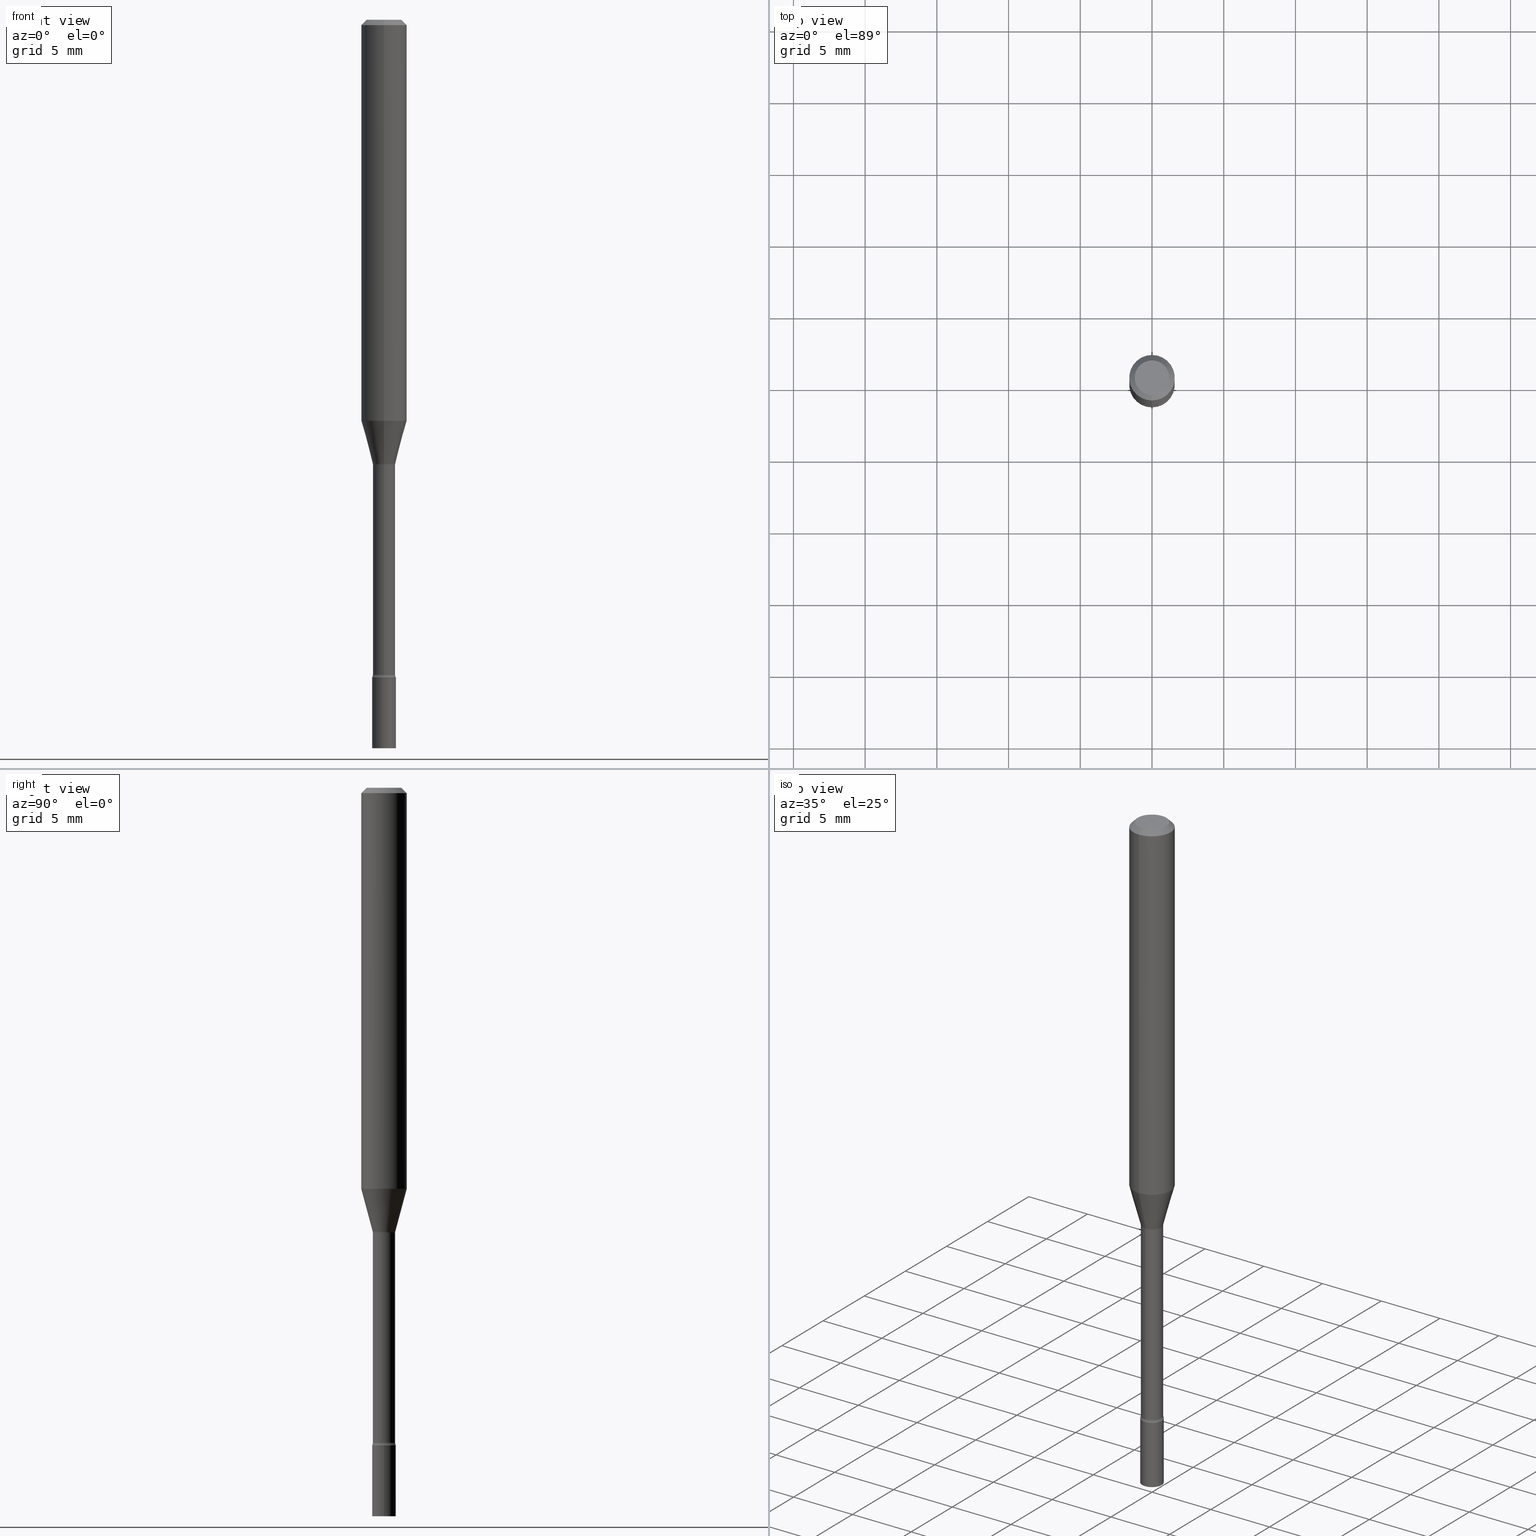
[diagram: canonical four-view strip — front | top / right | iso, engineering-drawing reading convention]
A machine part, canonical four-view strip (front | top / right | iso — engineering-drawing reading convention). The complete STEP part file that produces these views, byte-faithful:
ISO-10303-21;
HEADER;
FILE_DESCRIPTION (( 'STEP AP203' ),
    '1' );
FILE_NAME ('09866.STEP',
    '2024-03-09T02:30:56',
    ( '' ),
    ( '' ),
    'SwSTEP 2.0',
    'SolidWorks 2023',
    '' );
FILE_SCHEMA (( 'CONFIG_CONTROL_DESIGN' ));
ENDSEC;

DATA;
#1 = ORIENTED_EDGE ( 'NONE', *, *, #193, .T. ) ;
#2 = DATE_AND_TIME ( #67, #226 ) ;
#3 = DIRECTION ( 'NONE',  ( -2.445446564230640658E-29, 3.491513190587917155E-15, 1.000000000000000000 ) ) ;
#4 = DIRECTION ( 'NONE',  ( -6.982962677686265922E-15, -1.000000000000000000, 4.370956789862821150E-15 ) ) ;
#5 = CIRCLE ( 'NONE', #220, 0.06250000000000000000 ) ;
#6 = CIRCLE ( 'NONE', #363, 0.03055000000000000077 ) ;
#7 = CARTESIAN_POINT ( 'NONE',  ( 4.364351673553919652E-16, 0.06249999999999995143, -0.01500000000000024751 ) ) ;
#8 = DIRECTION ( 'NONE',  ( -6.982962677686265922E-15, -1.000000000000000000, 3.491513190587917155E-15 ) ) ;
#9 = ORIENTED_EDGE ( 'NONE', *, *, #57, .T. ) ;
#10 = EDGE_CURVE ( 'NONE', #101, #502, #59, .T. ) ;
#11 = DIRECTION ( 'NONE',  ( -2.445446564230640658E-29, 3.491513190587917155E-15, 1.000000000000000000 ) ) ;
#12 = CC_DESIGN_PERSON_AND_ORGANIZATION_ASSIGNMENT ( #311, #393, ( #234 ) ) ;
#13 = FACE_OUTER_BOUND ( 'NONE', #456, .T. ) ;
#14 = EDGE_LOOP ( 'NONE', ( #294, #263, #386, #18 ) ) ;
#15 = ORIENTED_EDGE ( 'NONE', *, *, #68, .T. ) ;
#16 = LINE ( 'NONE', #300, #19 ) ;
#17 = CYLINDRICAL_SURFACE ( 'NONE', #173, 0.03055000000000002505 ) ;
#18 = ORIENTED_EDGE ( 'NONE', *, *, #197, .T. ) ;
#19 = VECTOR ( 'NONE', #100, 39.37007874015748143 ) ;
#20 = EDGE_LOOP ( 'NONE', ( #451, #324, #383, #207 ) ) ;
#21 = EDGE_CURVE ( 'NONE', #202, #79, #341, .T. ) ;
#22 = CARTESIAN_POINT ( 'NONE',  ( -4.364351673553646016E-16, -0.06250000000000383027, -1.100760976698174298 ) ) ;
#23 = VERTEX_POINT ( 'NONE', #180 ) ;
#24 = PLANE ( 'NONE',  #427 ) ;
#25 = CARTESIAN_POINT ( 'NONE',  ( -2.133295098032718676E-16, -0.03055000000000632904, -1.797604224178627419 ) ) ;
#26 = AXIS2_PLACEMENT_3D ( 'NONE', #488, #81, #47 ) ;
#27 = AXIS2_PLACEMENT_3D ( 'NONE', #271, #399, #360 ) ;
#28 = DATE_TIME_ROLE ( 'classification_date' ) ;
#29 = DIRECTION ( 'NONE',  ( -6.982962677686265922E-15, -1.000000000000000000, 0.000000000000000000 ) ) ;
#30 = PERSON_AND_ORGANIZATION_ROLE ( 'classification_officer' ) ;
#31 = FACE_OUTER_BOUND ( 'NONE', #378, .T. ) ;
#32 = EDGE_CURVE ( 'NONE', #322, #202, #283, .T. ) ;
#33 = CARTESIAN_POINT ( 'NONE',  ( 0.000000000000000000, 0.000000000000000000, 0.000000000000000000 ) ) ;
#34 = CONICAL_SURFACE ( 'NONE', #236, 0.03106111260566394444, 0.2617993877991497964 ) ;
#35 = AXIS2_PLACEMENT_3D ( 'NONE', #194, #3, #276 ) ;
#36 = DIRECTION ( 'NONE',  ( -2.445446564230640658E-29, 3.491513190587917155E-15, 1.000000000000000000 ) ) ;
#37 = CARTESIAN_POINT ( 'NONE',  ( 4.414031048436306854E-29, -6.302181309011190411E-15, -1.804999999999999938 ) ) ;
#38 = AXIS2_PLACEMENT_3D ( 'NONE', #33, #354, #148 ) ;
#39 = DIRECTION ( 'NONE',  ( 1.000000000000000000, -7.105427357601001070E-15, 4.926315898613454836E-29 ) ) ;
#40 = CIRCLE ( 'NONE', #452, 0.03106111260566394444 ) ;
#41 = CIRCLE ( 'NONE', #398, 0.01500000000000001853 ) ;
#42 = DIRECTION ( 'NONE',  ( -6.982962677686265133E-15, -1.000000000000000000, 0.000000000000000000 ) ) ;
#43 = EDGE_LOOP ( 'NONE', ( #419, #85 ) ) ;
#44 = EDGE_CURVE ( 'NONE', #23, #246, #16, .T. ) ;
#45 = CARTESIAN_POINT ( 'NONE',  ( -2.133295098032855247E-16, -0.03055000000000426819, -1.221974787463810719 ) ) ;
#46 = EDGE_LOOP ( 'NONE', ( #487, #265 ) ) ;
#47 = DIRECTION ( 'NONE',  ( 1.000000000000000000, -6.982962677686258033E-15, 0.000000000000000000 ) ) ;
#48 = ORIENTED_EDGE ( 'NONE', *, *, #384, .T. ) ;
#49 = DIRECTION ( 'NONE',  ( 4.937700262164548042E-15, 0.7071067811865451302, -0.7071067811865499042 ) ) ;
#50 = CARTESIAN_POINT ( 'NONE',  ( 3.316907271900976096E-16, 0.04749999999999999362, -1.803030755379222344E-16 ) ) ;
#51 = ORIENTED_EDGE ( 'NONE', *, *, #44, .F. ) ;
#52 = VERTEX_POINT ( 'NONE', #25 ) ;
#53 =( NAMED_UNIT ( * ) SI_UNIT ( $, .STERADIAN. ) SOLID_ANGLE_UNIT ( ) );
#54 = VECTOR ( 'NONE', #49, 39.37007874015748143 ) ;
#55 = FACE_OUTER_BOUND ( 'NONE', #223, .T. ) ;
#56 = EDGE_LOOP ( 'NONE', ( #448, #264, #328, #95 ) ) ;
#57 = EDGE_CURVE ( 'NONE', #288, #97, #113, .T. ) ;
#58 = DIRECTION ( 'NONE',  ( -6.982962677686265133E-15, -1.000000000000000000, 4.471109645931690737E-15 ) ) ;
#59 = LINE ( 'NONE', #461, #353 ) ;
#60 =( NAMED_UNIT ( * ) PLANE_ANGLE_UNIT ( ) SI_UNIT ( $, .RADIAN. ) );
#61 = CARTESIAN_POINT ( 'NONE',  ( 0.03250000000000000111, -6.529070103636681305E-15, -1.804999999999999938 ) ) ;
#62 = EDGE_LOOP ( 'NONE', ( #313, #376, #110, #331 ) ) ;
#63 = PLANE ( 'NONE',  #338 ) ;
#64 = CONICAL_SURFACE ( 'NONE', #361, 0.06250000000000000000, 0.7853981633974483900 ) ;
#65 = TOROIDAL_SURFACE ( 'NONE', #301, 0.04555000000000000021, 0.01499999999999998904 ) ;
#66 = CIRCLE ( 'NONE', #317, 0.01500000000000001853 ) ;
#67 = CALENDAR_DATE ( 2024, 8, 3 ) ;
#68 = EDGE_CURVE ( 'NONE', #414, #246, #275, .T. ) ;
#69 = DIRECTION ( 'NONE',  ( -6.982962677686267499E-15, -1.000000000000000000, 0.000000000000000000 ) ) ;
#70 = DIRECTION ( 'NONE',  ( -2.445446564230640658E-29, 3.491513190587917155E-15, 1.000000000000000000 ) ) ;
#71 = MANIFOLD_SOLID_BREP ( 'Body-Move/Copy2[2]', #137 ) ;
#72 = DIRECTION ( 'NONE',  ( -6.982962677686266711E-15, -1.000000000000000000, 3.491513190587917549E-15 ) ) ;
#73 = AXIS2_PLACEMENT_3D ( 'NONE', #415, #258, #96 ) ;
#74 = LINE ( 'NONE', #106, #374 ) ;
#75 = CC_DESIGN_DATE_AND_TIME_ASSIGNMENT ( #429, #516, ( #234 ) ) ;
#76 = MANIFOLD_SOLID_BREP ( 'Body-Move/Copy2[1]', #498 ) ;
#77 = CARTESIAN_POINT ( 'NONE',  ( 2.239985974484158404E-16, 0.03054999999999378005, -1.797604224178627419 ) ) ;
#78 = FACE_OUTER_BOUND ( 'NONE', #464, .T. ) ;
#79 = VERTEX_POINT ( 'NONE', #145 ) ;
#80 = DIRECTION ( 'NONE',  ( -2.445446564230640658E-29, 3.491513190587917155E-15, 1.000000000000000000 ) ) ;
#81 = DIRECTION ( 'NONE',  ( -2.445468806185136597E-29, 3.491481338843145583E-15, 1.000000000000000000 ) ) ;
#82 = ORIENTED_EDGE ( 'NONE', *, *, #357, .T. ) ;
#83 = PERSON_AND_ORGANIZATION_ROLE ( 'design_owner' ) ;
#84 = DIRECTION ( 'NONE',  ( -2.445446564230640377E-29, 3.491513190587917155E-15, 1.000000000000000000 ) ) ;
#85 = ORIENTED_EDGE ( 'NONE', *, *, #357, .F. ) ;
#86 = EDGE_CURVE ( 'NONE', #373, #97, #430, .T. ) ;
#87 = VECTOR ( 'NONE', #375, 39.37007874015748143 ) ;
#88 = TOROIDAL_SURFACE ( 'NONE', #390, 0.04555000000000000021, 0.01499999999999998904 ) ;
#89 = CIRCLE ( 'NONE', #486, 0.03250000000000000111 ) ;
#90 = CARTESIAN_POINT ( 'NONE',  ( -2.133295098033156001E-16, -0.03055000000000002505, 1.066657279724609578E-16 ) ) ;
#91 = VERTEX_POINT ( 'NONE', #316 ) ;
#92 = DIMENSIONAL_EXPONENTS ( 1.000000000000000000, 0.000000000000000000, 0.000000000000000000, 0.000000000000000000, 0.000000000000000000, 0.000000000000000000, 0.000000000000000000 ) ;
#93 = CARTESIAN_POINT ( 'NONE',  ( 0.03250000000000000111, -7.209908964711093729E-15, -2.000000000000000000 ) ) ;
#94 = EDGE_CURVE ( 'NONE', #502, #79, #104, .T. ) ;
#95 = ORIENTED_EDGE ( 'NONE', *, *, #193, .F. ) ;
#96 = DIRECTION ( 'NONE',  ( -1.000000000000000000, 6.982962677686265922E-15, -4.876176775795935793E-29 ) ) ;
#97 = VERTEX_POINT ( 'NONE', #114 ) ;
#98 = APPROVAL ( #166, 'UNSPECIFIED' ) ;
#99 = DIRECTION ( 'NONE',  ( -6.982962677686265922E-15, -1.000000000000000000, 3.483106191921935554E-15 ) ) ;
#100 = DIRECTION ( 'NONE',  ( -2.445468806185136877E-29, 3.491481338843145188E-15, 1.000000000000000000 ) ) ;
#101 = VERTEX_POINT ( 'NONE', #268 ) ;
#102 = EDGE_CURVE ( 'NONE', #52, #91, #66, .T. ) ;
#103 = PERSON_AND_ORGANIZATION ( #112, #282 ) ;
#104 = LINE ( 'NONE', #395, #478 ) ;
#105 = LOCAL_TIME ( 21, 30, 56.00000000000000000, #144 ) ;
#106 = CARTESIAN_POINT ( 'NONE',  ( 2.207024792658396852E-16, 0.03106111260565969090, -1.218092501787273241 ) ) ;
#107 = SHAPE_DEFINITION_REPRESENTATION ( #412, #170 ) ;
#108 = DIRECTION ( 'NONE',  ( -2.445446564230640658E-29, 3.491513190587917155E-15, 1.000000000000000000 ) ) ;
#109 = EDGE_CURVE ( 'NONE', #254, #91, #89, .T. ) ;
#110 = ORIENTED_EDGE ( 'NONE', *, *, #68, .F. ) ;
#111 = FACE_OUTER_BOUND ( 'NONE', #56, .T. ) ;
#112 = PERSON ( 'UNSPECIFIED', 'UNSPECIFIED', 'UNSPECIFIED', ('UNSPECIFIED'), ('UNSPECIFIED'), ('UNSPECIFIED') ) ;
#113 = CIRCLE ( 'NONE', #310, 0.03055000000000000077 ) ;
#114 = CARTESIAN_POINT ( 'NONE',  ( 2.170708057747546898E-16, 0.03054999999999572988, -1.221974787463810941 ) ) ;
#115 = CARTESIAN_POINT ( 'NONE',  ( 2.988301224687461483E-29, -4.266502166966714459E-15, -1.221974787463810941 ) ) ;
#116 = ADVANCED_FACE ( 'NONE', ( #111 ), #157, .T. ) ;
#117 = DIRECTION ( 'NONE',  ( 7.105427357601001859E-15, 1.000000000000000000, 0.000000000000000000 ) ) ;
#118 = ORIENTED_EDGE ( 'NONE', *, *, #256, .F. ) ;
#119 = DIRECTION ( 'NONE',  ( -2.445468806185136597E-29, 3.491481338843145583E-15, 1.000000000000000000 ) ) ;
#120 = DIRECTION ( 'NONE',  ( -6.982962677686265922E-15, -1.000000000000000000, 3.491513190587917155E-15 ) ) ;
#121 = COORDINATED_UNIVERSAL_TIME_OFFSET ( 5, 0, .BEHIND. ) ;
#122 = EDGE_CURVE ( 'NONE', #257, #79, #326, .T. ) ;
#123 = FACE_OUTER_BOUND ( 'NONE', #337, .T. ) ;
#124 = ORIENTED_EDGE ( 'NONE', *, *, #480, .T. ) ;
#125 = DIRECTION ( 'NONE',  ( -6.982962677686265922E-15, -1.000000000000000000, 4.397537249142380957E-15 ) ) ;
#126 = CIRCLE ( 'NONE', #497, 0.03250000000000000111 ) ;
#127 = ORIENTED_EDGE ( 'NONE', *, *, #197, .F. ) ;
#128 = ADVANCED_FACE ( 'NONE', ( #229 ), #394, .T. ) ;
#129 = FACE_OUTER_BOUND ( 'NONE', #43, .T. ) ;
#130 = ORIENTED_EDGE ( 'NONE', *, *, #94, .F. ) ;
#131 = MECHANICAL_CONTEXT ( 'NONE', #178, 'mechanical' ) ;
#132 = CARTESIAN_POINT ( 'NONE',  ( 2.691852148505715417E-29, -3.843321469826115367E-15, -1.100760976698174520 ) ) ;
#133 = ORIENTED_EDGE ( 'NONE', *, *, #348, .F. ) ;
#134 = FACE_OUTER_BOUND ( 'NONE', #483, .T. ) ;
#135 = TOROIDAL_SURFACE ( 'NONE', #244, 0.04555000000000007654, 0.01500000000000002373 ) ;
#136 = DIRECTION ( 'NONE',  ( -6.982962677686266711E-15, -1.000000000000000000, 3.491513190587917549E-15 ) ) ;
#137 = CLOSED_SHELL ( 'NONE', ( #239, #405, #425, #219, #247, #339, #116, #165, #433, #458, #359, #280, #320, #366 ) ) ;
#138 = ORIENTED_EDGE ( 'NONE', *, *, #188, .T. ) ;
#139 = EDGE_CURVE ( 'NONE', #202, #322, #200, .T. ) ;
#140 = APPROVAL_STATUS ( 'not_yet_approved' ) ;
#141 = DIRECTION ( 'NONE',  ( -2.445446564230640658E-29, 3.491513190587917155E-15, 1.000000000000000000 ) ) ;
#142 = AXIS2_PLACEMENT_3D ( 'NONE', #432, #70, #29 ) ;
#143 = CC_DESIGN_PERSON_AND_ORGANIZATION_ASSIGNMENT ( #230, #30, ( #371 ) ) ;
#144 = COORDINATED_UNIVERSAL_TIME_OFFSET ( 5, 0, .BEHIND. ) ;
#145 = CARTESIAN_POINT ( 'NONE',  ( -4.364351673553912750E-16, -0.06250000000000005551, -0.01499999999999981209 ) ) ;
#146 = APPROVAL_ROLE ( '' ) ;
#147 = EDGE_CURVE ( 'NONE', #373, #254, #41, .T. ) ;
#148 = DIRECTION ( 'NONE',  ( 1.000000000000000000, -6.982962677686265922E-15, 4.876176775795935232E-29 ) ) ;
#149 = ORIENTED_EDGE ( 'NONE', *, *, #381, .F. ) ;
#150 = PERSON_AND_ORGANIZATION ( #112, #282 ) ;
#151 = DIRECTION ( 'NONE',  ( 1.000000000000000000, -6.982962677686265922E-15, 4.876176775795935232E-29 ) ) ;
#152 = DIRECTION ( 'NONE',  ( 1.839019923739597160E-15, 0.2588190451025245142, 0.9659258262890673130 ) ) ;
#153 = CC_DESIGN_APPROVAL ( #98, ( #234 ) ) ;
#154 = AXIS2_PLACEMENT_3D ( 'NONE', #211, #206, #442 ) ;
#155 = CIRCLE ( 'NONE', #508, 0.06250000000000000000 ) ;
#156 = CIRCLE ( 'NONE', #454, 0.01499999999999998557 ) ;
#157 = CONICAL_SURFACE ( 'NONE', #35, 0.03106111260566394444, 0.2617993877991497964 ) ;
#158 = DIRECTION ( 'NONE',  ( -6.982962677686265922E-15, -1.000000000000000000, 3.491513190587917155E-15 ) ) ;
#159 = FACE_OUTER_BOUND ( 'NONE', #291, .T. ) ;
#160 = ORIENTED_EDGE ( 'NONE', *, *, #500, .T. ) ;
#161 = DIRECTION ( 'NONE',  ( -6.982962677686265922E-15, -1.000000000000000000, 4.397537249142380957E-15 ) ) ;
#162 = LOCAL_TIME ( 21, 30, 56.00000000000000000, #121 ) ;
#163 = AXIS2_PLACEMENT_3D ( 'NONE', #195, #347, #151 ) ;
#164 = DIRECTION ( 'NONE',  ( -6.982962677686266711E-15, -1.000000000000000000, 0.000000000000000000 ) ) ;
#165 = ADVANCED_FACE ( 'NONE', ( #185 ), #520, .T. ) ;
#166 = APPROVAL_STATUS ( 'not_yet_approved' ) ;
#167 = CARTESIAN_POINT ( 'NONE',  ( 4.395945073864110714E-29, -6.276358860176236554E-15, -1.797604224178627419 ) ) ;
#168 = CC_DESIGN_PERSON_AND_ORGANIZATION_ASSIGNMENT ( #493, #83, ( #462 ) ) ;
#169 = CIRCLE ( 'NONE', #474, 0.06250000000000000000 ) ;
#170 = ADVANCED_BREP_SHAPE_REPRESENTATION ( '09866', ( #76, #71, #209 ), #298 ) ;
#171 = CARTESIAN_POINT ( 'NONE',  ( 0.03250000000000000111, -2.269462870248036484E-16, 1.584757452133678993E-30 ) ) ;
#172 = DIRECTION ( 'NONE',  ( -6.982962677686265133E-15, -1.000000000000000000, 4.471109645931690737E-15 ) ) ;
#173 = AXIS2_PLACEMENT_3D ( 'NONE', #176, #506, #262 ) ;
#174 = CARTESIAN_POINT ( 'NONE',  ( 4.440892098500625669E-16, 0.06250000000000000000, -2.182195744117448222E-16 ) ) ;
#175 = ORIENTED_EDGE ( 'NONE', *, *, #32, .F. ) ;
#176 = CARTESIAN_POINT ( 'NONE',  ( 0.000000000000000000, 0.000000000000000000, 0.000000000000000000 ) ) ;
#177 = CARTESIAN_POINT ( 'NONE',  ( -4.287811248607203282E-16, -0.06250000000000005551, -0.01499999999999981209 ) ) ;
#178 = APPLICATION_CONTEXT ( 'configuration controlled 3d designs of mechanical parts and assemblies' ) ;
#179 = DIRECTION ( 'NONE',  ( -6.982962677686265922E-15, -1.000000000000000000, 4.370956789862821150E-15 ) ) ;
#180 = CARTESIAN_POINT ( 'NONE',  ( -0.03250000000000000111, -6.411616858027052188E-15, -2.000000000000000000 ) ) ;
#181 = CARTESIAN_POINT ( 'NONE',  ( 2.978780123410792482E-29, -4.252986037346500323E-15, -1.218092501787273241 ) ) ;
#182 = ADVANCED_FACE ( 'NONE', ( #31 ), #63, .T. ) ;
#183 = AXIS2_PLACEMENT_3D ( 'NONE', #438, #484, #164 ) ;
#184 = CARTESIAN_POINT ( 'NONE',  ( 2.988274045579844042E-29, -4.266541088995761830E-15, -1.221974787463810941 ) ) ;
#185 = FACE_OUTER_BOUND ( 'NONE', #242, .T. ) ;
#186 = COORDINATED_UNIVERSAL_TIME_OFFSET ( 5, 0, .BEHIND. ) ;
#187 = DIRECTION ( 'NONE',  ( -6.982962677686265922E-15, -1.000000000000000000, 3.483106191921935554E-15 ) ) ;
#188 = EDGE_CURVE ( 'NONE', #212, #424, #74, .T. ) ;
#189 = SECURITY_CLASSIFICATION_LEVEL ( 'unclassified' ) ;
#190 = CARTESIAN_POINT ( 'NONE',  ( 2.170708057747107601E-16, 0.03055000000000002505, -1.066657279724609578E-16 ) ) ;
#191 = CIRCLE ( 'NONE', #210, 0.03055000000000005628 ) ;
#192 = VECTOR ( 'NONE', #479, 39.37007874015748143 ) ;
#193 = EDGE_CURVE ( 'NONE', #424, #502, #169, .T. ) ;
#194 = CARTESIAN_POINT ( 'NONE',  ( 2.978780123410792482E-29, -4.252986037346500323E-15, -1.218092501787273241 ) ) ;
#195 = CARTESIAN_POINT ( 'NONE',  ( 0.000000000000000000, 0.000000000000000000, 0.000000000000000000 ) ) ;
#196 = DIRECTION ( 'NONE',  ( -6.982962677686265922E-15, -1.000000000000000000, 3.491513190587917155E-15 ) ) ;
#197 = EDGE_CURVE ( 'NONE', #91, #254, #249, .T. ) ;
#198 = CC_DESIGN_APPROVAL ( #435, ( #380 ) ) ;
#199 = AXIS2_PLACEMENT_3D ( 'NONE', #447, #84, #8 ) ;
#200 = CIRCLE ( 'NONE', #269, 0.04749999999999999362 ) ;
#201 = DIRECTION ( 'NONE',  ( -2.445446564230640658E-29, 3.491513190587917155E-15, 1.000000000000000000 ) ) ;
#202 = VERTEX_POINT ( 'NONE', #434 ) ;
#203 = DIRECTION ( 'NONE',  ( -6.982962677686265133E-15, -1.000000000000000000, 0.000000000000000000 ) ) ;
#204 = ORIENTED_EDGE ( 'NONE', *, *, #296, .T. ) ;
#205 = ADVANCED_FACE ( 'NONE', ( #514 ), #233, .T. ) ;
#206 = DIRECTION ( 'NONE',  ( 2.445446564230640658E-29, -3.491513190587917155E-15, -1.000000000000000000 ) ) ;
#207 = ORIENTED_EDGE ( 'NONE', *, *, #102, .F. ) ;
#208 = PERSON_AND_ORGANIZATION ( #112, #282 ) ;
#209 = AXIS2_PLACEMENT_3D ( 'NONE', #218, #420, #379 ) ;
#210 = AXIS2_PLACEMENT_3D ( 'NONE', #167, #318, #42 ) ;
#211 = CARTESIAN_POINT ( 'NONE',  ( 3.668169846345967940E-31, -5.237269785881886382E-17, -0.01500000000000003067 ) ) ;
#212 = VERTEX_POINT ( 'NONE', #312 ) ;
#213 = DATE_AND_TIME ( #449, #162 ) ;
#214 = FACE_OUTER_BOUND ( 'NONE', #20, .T. ) ;
#215 = ORIENTED_EDGE ( 'NONE', *, *, #86, .F. ) ;
#216 = DIRECTION ( 'NONE',  ( -2.445446564230640658E-29, 3.491513190587917155E-15, 1.000000000000000000 ) ) ;
#217 = ORIENTED_EDGE ( 'NONE', *, *, #86, .T. ) ;
#218 = CARTESIAN_POINT ( 'NONE',  ( 0.000000000000000000, 0.000000000000000000, 0.000000000000000000 ) ) ;
#219 = ADVANCED_FACE ( 'NONE', ( #473 ), #368, .T. ) ;
#220 = AXIS2_PLACEMENT_3D ( 'NONE', #293, #457, #99 ) ;
#221 = AXIS2_PLACEMENT_3D ( 'NONE', #491, #372, #158 ) ;
#222 = DIRECTION ( 'NONE',  ( -2.445446564230640658E-29, 3.491513190587917155E-15, 1.000000000000000000 ) ) ;
#223 = EDGE_LOOP ( 'NONE', ( #297, #217, #505, #284 ) ) ;
#224 = ORIENTED_EDGE ( 'NONE', *, *, #256, .T. ) ;
#225 = ORIENTED_EDGE ( 'NONE', *, *, #109, .F. ) ;
#226 = LOCAL_TIME ( 21, 30, 56.00000000000000000, #466 ) ;
#227 = APPROVAL ( #519, 'UNSPECIFIED' ) ;
#228 = APPLICATION_PROTOCOL_DEFINITION ( 'international standard', 'config_control_design', 1994, #237 ) ;
#229 = FACE_OUTER_BOUND ( 'NONE', #62, .T. ) ;
#230 = PERSON_AND_ORGANIZATION ( #112, #282 ) ;
#231 = DIRECTION ( 'NONE',  ( -2.445446564230640658E-29, 3.491513190587917155E-15, 1.000000000000000000 ) ) ;
#232 = EDGE_CURVE ( 'NONE', #322, #257, #279, .T. ) ;
#233 = CYLINDRICAL_SURFACE ( 'NONE', #38, 0.03250000000000000111 ) ;
#234 = PRODUCT_DEFINITION ( 'UNKNOWN', '', #380, #431 ) ;
#235 = CARTESIAN_POINT ( 'NONE',  ( 0.000000000000000000, 0.000000000000000000, 0.000000000000000000 ) ) ;
#236 = AXIS2_PLACEMENT_3D ( 'NONE', #364, #11, #161 ) ;
#237 = APPLICATION_CONTEXT ( 'configuration controlled 3d designs of mechanical parts and assemblies' ) ;
#238 = DIRECTION ( 'NONE',  ( -2.445446564230640658E-29, 3.491513190587917155E-15, 1.000000000000000000 ) ) ;
#239 = ADVANCED_FACE ( 'NONE', ( #78 ), #65, .F. ) ;
#240 = CARTESIAN_POINT ( 'NONE',  ( 2.988301224687461483E-29, -4.266502166966714459E-15, -1.221974787463810941 ) ) ;
#241 = FACE_OUTER_BOUND ( 'NONE', #14, .T. ) ;
#242 = EDGE_LOOP ( 'NONE', ( #303, #1, #445, #426 ) ) ;
#243 = APPROVAL_PERSON_ORGANIZATION ( #150, #435, #468 ) ;
#244 = AXIS2_PLACEMENT_3D ( 'NONE', #407, #404, #196 ) ;
#245 = CYLINDRICAL_SURFACE ( 'NONE', #221, 0.06250000000000000000 ) ;
#246 = VERTEX_POINT ( 'NONE', #327 ) ;
#247 = ADVANCED_FACE ( 'NONE', ( #362 ), #245, .T. ) ;
#248 = ORIENTED_EDGE ( 'NONE', *, *, #500, .F. ) ;
#249 = CIRCLE ( 'NONE', #142, 0.03250000000000000111 ) ;
#250 = DIRECTION ( 'NONE',  ( -6.982962677686265922E-15, -1.000000000000000000, 3.491513190587917155E-15 ) ) ;
#251 = EDGE_LOOP ( 'NONE', ( #215, #204, #411, #492 ) ) ;
#252 = CIRCLE ( 'NONE', #26, 0.03250000000000000111 ) ;
#253 =( LENGTH_UNIT ( ) NAMED_UNIT ( * ) SI_UNIT ( $, .METRE. ) );
#254 = VERTEX_POINT ( 'NONE', #369 ) ;
#255 = FACE_OUTER_BOUND ( 'NONE', #46, .T. ) ;
#256 = EDGE_CURVE ( 'NONE', #246, #414, #499, .T. ) ;
#257 = VERTEX_POINT ( 'NONE', #444 ) ;
#258 = DIRECTION ( 'NONE',  ( 2.438088387897960049E-29, -3.491481338843145188E-15, -1.000000000000000000 ) ) ;
#259 = EDGE_LOOP ( 'NONE', ( #417, #124, #365, #130 ) ) ;
#260 = APPROVAL_PERSON_ORGANIZATION ( #208, #98, #329 ) ;
#261 = AXIS2_PLACEMENT_3D ( 'NONE', #409, #277, #203 ) ;
#262 = DIRECTION ( 'NONE',  ( -6.982962677686265922E-15, -1.000000000000000000, 3.491513190587917155E-15 ) ) ;
#263 = ORIENTED_EDGE ( 'NONE', *, *, #306, .F. ) ;
#264 = ORIENTED_EDGE ( 'NONE', *, *, #416, .T. ) ;
#265 = ORIENTED_EDGE ( 'NONE', *, *, #139, .T. ) ;
#266 = CIRCLE ( 'NONE', #334, 0.03106111260566394444 ) ;
#267 = PERSON_AND_ORGANIZATION_ROLE ( 'design_supplier' ) ;
#268 = CARTESIAN_POINT ( 'NONE',  ( -2.168985900527319414E-16, -0.03106111260566819451, -1.218092501787273019 ) ) ;
#269 = AXIS2_PLACEMENT_3D ( 'NONE', #315, #108, #72 ) ;
#270 = CARTESIAN_POINT ( 'NONE',  ( 2.691852148505715417E-29, -3.843321469826115367E-15, -1.100760976698174520 ) ) ;
#271 = CARTESIAN_POINT ( 'NONE',  ( 4.414071195164171423E-29, -6.302123816611877952E-15, -1.804999999999999938 ) ) ;
#272 = ORIENTED_EDGE ( 'NONE', *, *, #348, .T. ) ;
#273 = CARTESIAN_POINT ( 'NONE',  ( 3.236522161387701082E-16, 0.04554999999999380378, -1.797604224178627641 ) ) ;
#274 = APPROVAL_PERSON_ORGANIZATION ( #352, #227, #146 ) ;
#275 = CIRCLE ( 'NONE', #27, 0.03250000000000000111 ) ;
#276 = DIRECTION ( 'NONE',  ( -6.982962677686265922E-15, -1.000000000000000000, 4.397537249142380957E-15 ) ) ;
#277 = DIRECTION ( 'NONE',  ( -2.445446564230640658E-29, 3.491513190587917155E-15, 1.000000000000000000 ) ) ;
#278 = UNCERTAINTY_MEASURE_WITH_UNIT (LENGTH_MEASURE( 1.000000000000000082E-05 ), #512, 'distance_accuracy_value', 'NONE');
#279 = LINE ( 'NONE', #7, #54 ) ;
#280 = ADVANCED_FACE ( 'NONE', ( #241 ), #135, .F. ) ;
#281 = EDGE_LOOP ( 'NONE', ( #511, #333, #489, #440 ) ) ;
#282 = ORGANIZATION ( 'UNSPECIFIED', 'UNSPECIFIED', '' ) ;
#283 = CIRCLE ( 'NONE', #509, 0.04749999999999999362 ) ;
#284 = ORIENTED_EDGE ( 'NONE', *, *, #472, .F. ) ;
#285 = DIRECTION ( 'NONE',  ( 1.000000000000000000, -6.982962677686258033E-15, 0.000000000000000000 ) ) ;
#286 = ORIENTED_EDGE ( 'NONE', *, *, #232, .T. ) ;
#287 = DIRECTION ( 'NONE',  ( -2.445446564230640658E-29, 3.491513190587917155E-15, 1.000000000000000000 ) ) ;
#288 = VERTEX_POINT ( 'NONE', #45 ) ;
#289 = CC_DESIGN_SECURITY_CLASSIFICATION ( #371, ( #380 ) ) ;
#290 = VECTOR ( 'NONE', #422, 39.37007874015748143 ) ;
#291 = EDGE_LOOP ( 'NONE', ( #149, #248, #272, #9 ) ) ;
#292 = PRODUCT_RELATED_PRODUCT_CATEGORY ( 'detail', '', ( #462 ) ) ;
#293 = CARTESIAN_POINT ( 'NONE',  ( 3.668169846345967940E-31, -5.237269785881886382E-17, -0.01500000000000003067 ) ) ;
#294 = ORIENTED_EDGE ( 'NONE', *, *, #147, .F. ) ;
#295 = DIRECTION ( 'NONE',  ( -2.445446564230640658E-29, 3.491513190587917155E-15, 1.000000000000000000 ) ) ;
#296 = EDGE_CURVE ( 'NONE', #373, #52, #191, .T. ) ;
#297 = ORIENTED_EDGE ( 'NONE', *, *, #306, .T. ) ;
#298 =( GEOMETRIC_REPRESENTATION_CONTEXT ( 3 ) GLOBAL_UNCERTAINTY_ASSIGNED_CONTEXT ( ( #278 ) ) GLOBAL_UNIT_ASSIGNED_CONTEXT ( ( #512, #60, #53 ) ) REPRESENTATION_CONTEXT ( 'NONE', 'WORKASPACE' ) );
#299 = LINE ( 'NONE', #171, #87 ) ;
#300 = CARTESIAN_POINT ( 'NONE',  ( -0.03250000000000000111, 2.309263891220325683E-16, -1.598653904332844407E-30 ) ) ;
#301 = AXIS2_PLACEMENT_3D ( 'NONE', #115, #80, #120 ) ;
#302 = CC_DESIGN_DATE_AND_TIME_ASSIGNMENT ( #349, #28, ( #371 ) ) ;
#303 = ORIENTED_EDGE ( 'NONE', *, *, #480, .F. ) ;
#304 = COORDINATED_UNIVERSAL_TIME_OFFSET ( 5, 0, .BEHIND. ) ;
#305 = DIRECTION ( 'NONE',  ( 7.105427357601001859E-15, 1.000000000000000000, 0.000000000000000000 ) ) ;
#306 = EDGE_CURVE ( 'NONE', #52, #373, #518, .T. ) ;
#307 = LOCAL_TIME ( 21, 30, 56.00000000000000000, #186 ) ;
#308 = CALENDAR_DATE ( 2024, 8, 3 ) ;
#309 = DIRECTION ( 'NONE',  ( 1.000000000000000000, -6.982962677686265922E-15, 4.876176775795935793E-29 ) ) ;
#310 = AXIS2_PLACEMENT_3D ( 'NONE', #184, #345, #172 ) ;
#311 = PERSON_AND_ORGANIZATION ( #112, #282 ) ;
#312 = CARTESIAN_POINT ( 'NONE',  ( 3.323958445579646476E-16, 0.03106111260565969090, -1.218092501787273241 ) ) ;
#313 = ORIENTED_EDGE ( 'NONE', *, *, #396, .T. ) ;
#314 = APPROVAL_DATE_TIME ( #2, #435 ) ;
#315 = CARTESIAN_POINT ( 'NONE',  ( 7.070372427938679319E-46, -1.009480188837556629E-31, -2.891239796999236725E-17 ) ) ;
#316 = CARTESIAN_POINT ( 'NONE',  ( -2.269462870247595215E-16, -0.03250000000000631550, -1.804999999999999938 ) ) ;
#317 = AXIS2_PLACEMENT_3D ( 'NONE', #467, #358, #69 ) ;
#318 = DIRECTION ( 'NONE',  ( -2.445446564230640658E-29, 3.491513190587917155E-15, 1.000000000000000000 ) ) ;
#319 = AXIS2_PLACEMENT_3D ( 'NONE', #235, #477, #437 ) ;
#320 = ADVANCED_FACE ( 'NONE', ( #367 ), #439, .T. ) ;
#321 = DIRECTION ( 'NONE',  ( -6.982962677686265922E-15, -1.000000000000000000, 3.491513190587917155E-15 ) ) ;
#322 = VERTEX_POINT ( 'NONE', #323 ) ;
#323 = CARTESIAN_POINT ( 'NONE',  ( 3.840629472727447874E-16, 0.04749999999999999362, -1.947592745229184365E-16 ) ) ;
#324 = ORIENTED_EDGE ( 'NONE', *, *, #147, .T. ) ;
#325 = VECTOR ( 'NONE', #216, 39.37007874015748143 ) ;
#326 = CIRCLE ( 'NONE', #428, 0.06250000000000000000 ) ;
#327 = CARTESIAN_POINT ( 'NONE',  ( -0.03250000000000000111, -6.411616858027052188E-15, -1.804999999999999938 ) ) ;
#328 = ORIENTED_EDGE ( 'NONE', *, *, #10, .T. ) ;
#329 = APPROVAL_ROLE ( '' ) ;
#330 = PLANE ( 'NONE',  #199 ) ;
#331 = ORIENTED_EDGE ( 'NONE', *, *, #446, .F. ) ;
#332 = DIRECTION ( 'NONE',  ( 1.000000000000000000, -6.982962677686258033E-15, 0.000000000000000000 ) ) ;
#333 = ORIENTED_EDGE ( 'NONE', *, *, #21, .T. ) ;
#334 = AXIS2_PLACEMENT_3D ( 'NONE', #418, #222, #382 ) ;
#335 = AXIS2_PLACEMENT_3D ( 'NONE', #481, #119, #285 ) ;
#336 = DIRECTION ( 'NONE',  ( -2.445446564230640658E-29, 3.491513190587917155E-15, 1.000000000000000000 ) ) ;
#337 = EDGE_LOOP ( 'NONE', ( #160, #138, #507, #388 ) ) ;
#338 = AXIS2_PLACEMENT_3D ( 'NONE', #392, #350, #309 ) ;
#339 = ADVANCED_FACE ( 'NONE', ( #123 ), #34, .T. ) ;
#340 = CARTESIAN_POINT ( 'NONE',  ( 4.395985056095466653E-29, -6.276301603345288080E-15, -1.797604224178627419 ) ) ;
#341 = LINE ( 'NONE', #177, #290 ) ;
#342 = DIRECTION ( 'NONE',  ( -2.445446564230640658E-29, 3.491513190587917155E-15, 1.000000000000000000 ) ) ;
#343 = CIRCLE ( 'NONE', #183, 0.01499999999999998557 ) ;
#344 = PLANE ( 'NONE',  #73 ) ;
#345 = DIRECTION ( 'NONE',  ( -2.445446564230640658E-29, 3.491513190587917155E-15, 1.000000000000000000 ) ) ;
#346 = DATE_AND_TIME ( #308, #105 ) ;
#347 = DIRECTION ( 'NONE',  ( -2.445468806185136597E-29, 3.491481338843145583E-15, 1.000000000000000000 ) ) ;
#348 = EDGE_CURVE ( 'NONE', #101, #288, #343, .T. ) ;
#349 = DATE_AND_TIME ( #391, #307 ) ;
#350 = DIRECTION ( 'NONE',  ( -2.438088387897960049E-29, 3.491481338843145188E-15, 1.000000000000000000 ) ) ;
#351 = LOCAL_TIME ( 21, 30, 56.00000000000000000, #304 ) ;
#352 = PERSON_AND_ORGANIZATION ( #112, #282 ) ;
#353 = VECTOR ( 'NONE', #459, 39.37007874015748143 ) ;
#354 = DIRECTION ( 'NONE',  ( -2.445468806185136597E-29, 3.491481338843145583E-15, 1.000000000000000000 ) ) ;
#355 = EDGE_LOOP ( 'NONE', ( #51, #82, #406, #118 ) ) ;
#356 = PERSON_AND_ORGANIZATION ( #112, #282 ) ;
#357 = EDGE_CURVE ( 'NONE', #23, #496, #252, .T. ) ;
#358 = DIRECTION ( 'NONE',  ( -1.000000000000000000, 6.982962677686265922E-15, -4.883557194083112340E-29 ) ) ;
#359 = ADVANCED_FACE ( 'NONE', ( #13 ), #330, .F. ) ;
#360 = DIRECTION ( 'NONE',  ( 1.000000000000000000, -6.982962677686258033E-15, 0.000000000000000000 ) ) ;
#361 = AXIS2_PLACEMENT_3D ( 'NONE', #494, #460, #504 ) ;
#362 = FACE_OUTER_BOUND ( 'NONE', #259, .T. ) ;
#363 = AXIS2_PLACEMENT_3D ( 'NONE', #510, #336, #58 ) ;
#364 = CARTESIAN_POINT ( 'NONE',  ( 2.978780123410792482E-29, -4.252986037346500323E-15, -1.218092501787273241 ) ) ;
#365 = ORIENTED_EDGE ( 'NONE', *, *, #485, .F. ) ;
#366 = ADVANCED_FACE ( 'NONE', ( #159 ), #88, .F. ) ;
#367 = FACE_OUTER_BOUND ( 'NONE', #251, .T. ) ;
#368 = CONICAL_SURFACE ( 'NONE', #154, 0.06250000000000000000, 0.7853981633974483900 ) ;
#369 = CARTESIAN_POINT ( 'NONE',  ( 2.309263891220767445E-16, 0.03249999999999371447, -1.804999999999999938 ) ) ;
#370 = ORIENTED_EDGE ( 'NONE', *, *, #122, .T. ) ;
#371 = SECURITY_CLASSIFICATION ( '', '', #189 ) ;
#372 = DIRECTION ( 'NONE',  ( -2.445446564230640658E-29, 3.491513190587917155E-15, 1.000000000000000000 ) ) ;
#373 = VERTEX_POINT ( 'NONE', #77 ) ;
#374 = VECTOR ( 'NONE', #152, 39.37007874015748143 ) ;
#375 = DIRECTION ( 'NONE',  ( -2.445468806185136877E-29, 3.491481338843145188E-15, 1.000000000000000000 ) ) ;
#376 = ORIENTED_EDGE ( 'NONE', *, *, #44, .T. ) ;
#377 = LINE ( 'NONE', #174, #436 ) ;
#378 = EDGE_LOOP ( 'NONE', ( #15, #224 ) ) ;
#379 = DIRECTION ( 'NONE',  ( 1.000000000000000000, 0.000000000000000000, 0.000000000000000000 ) ) ;
#380 = PRODUCT_DEFINITION_FORMATION_WITH_SPECIFIED_SOURCE ( 'ANY', '', #462, .NOT_KNOWN. ) ;
#381 = EDGE_CURVE ( 'NONE', #212, #97, #156, .T. ) ;
#382 = DIRECTION ( 'NONE',  ( -6.982962677686265922E-15, -1.000000000000000000, 4.397537249142380957E-15 ) ) ;
#383 = ORIENTED_EDGE ( 'NONE', *, *, #109, .T. ) ;
#384 = EDGE_CURVE ( 'NONE', #97, #288, #6, .T. ) ;
#385 = DIRECTION ( 'NONE',  ( 2.445446564230640377E-29, -3.491513190587917155E-15, -1.000000000000000000 ) ) ;
#386 = ORIENTED_EDGE ( 'NONE', *, *, #102, .T. ) ;
#387 = DIRECTION ( 'NONE',  ( -6.982962677686265922E-15, -1.000000000000000000, 3.491513190587917155E-15 ) ) ;
#388 = ORIENTED_EDGE ( 'NONE', *, *, #10, .F. ) ;
#389 = AXIS2_PLACEMENT_3D ( 'NONE', #340, #295, #387 ) ;
#390 = AXIS2_PLACEMENT_3D ( 'NONE', #240, #402, #321 ) ;
#391 = CALENDAR_DATE ( 2024, 8, 3 ) ;
#392 = CARTESIAN_POINT ( 'NONE',  ( 4.414071195164171423E-29, -6.302123816611877952E-15, -1.804999999999999938 ) ) ;
#393 = PERSON_AND_ORGANIZATION_ROLE ( 'creator' ) ;
#394 = CYLINDRICAL_SURFACE ( 'NONE', #163, 0.03250000000000000111 ) ;
#395 = CARTESIAN_POINT ( 'NONE',  ( -4.364351673553916201E-16, -0.06250000000000000000, 2.182195744117448222E-16 ) ) ;
#396 = EDGE_CURVE ( 'NONE', #496, #23, #126, .T. ) ;
#397 = AXIS2_PLACEMENT_3D ( 'NONE', #410, #201, #250 ) ;
#398 = AXIS2_PLACEMENT_3D ( 'NONE', #273, #470, #305 ) ;
#399 = DIRECTION ( 'NONE',  ( -2.445468806185136597E-29, 3.491481338843145583E-15, 1.000000000000000000 ) ) ;
#400 = CC_DESIGN_PERSON_AND_ORGANIZATION_ASSIGNMENT ( #356, #476, ( #380 ) ) ;
#401 = DIRECTION ( 'NONE',  ( -6.982962677686265922E-15, -1.000000000000000000, 0.000000000000000000 ) ) ;
#402 = DIRECTION ( 'NONE',  ( -2.445446564230640658E-29, 3.491513190587917155E-15, 1.000000000000000000 ) ) ;
#403 = CC_DESIGN_APPROVAL ( #227, ( #371 ) ) ;
#404 = DIRECTION ( 'NONE',  ( -2.445446564230640658E-29, 3.491513190587917155E-15, 1.000000000000000000 ) ) ;
#405 = ADVANCED_FACE ( 'NONE', ( #55 ), #17, .T. ) ;
#406 = ORIENTED_EDGE ( 'NONE', *, *, #446, .T. ) ;
#407 = CARTESIAN_POINT ( 'NONE',  ( 4.395985056095466653E-29, -6.276301603345288080E-15, -1.797604224178627419 ) ) ;
#408 = ORIENTED_EDGE ( 'NONE', *, *, #21, .F. ) ;
#409 = CARTESIAN_POINT ( 'NONE',  ( 4.395945073864110714E-29, -6.276358860176236554E-15, -1.797604224178627419 ) ) ;
#410 = CARTESIAN_POINT ( 'NONE',  ( 0.000000000000000000, 0.000000000000000000, 0.000000000000000000 ) ) ;
#411 = ORIENTED_EDGE ( 'NONE', *, *, #472, .T. ) ;
#412 = PRODUCT_DEFINITION_SHAPE ( 'NONE', 'NONE',  #234 ) ;
#413 = CARTESIAN_POINT ( 'NONE',  ( 4.890937612370273194E-29, -6.982962677686291165E-15, -2.000000000000000000 ) ) ;
#414 = VERTEX_POINT ( 'NONE', #61 ) ;
#415 = CARTESIAN_POINT ( 'NONE',  ( 2.269462870248525577E-16, 0.03249999999999301364, -2.000000000000000000 ) ) ;
#416 = EDGE_CURVE ( 'NONE', #212, #101, #40, .T. ) ;
#417 = ORIENTED_EDGE ( 'NONE', *, *, #515, .T. ) ;
#418 = CARTESIAN_POINT ( 'NONE',  ( 2.978780123410792482E-29, -4.252986037346500323E-15, -1.218092501787273241 ) ) ;
#419 = ORIENTED_EDGE ( 'NONE', *, *, #396, .F. ) ;
#420 = DIRECTION ( 'NONE',  ( 0.000000000000000000, 0.000000000000000000, 1.000000000000000000 ) ) ;
#421 = LINE ( 'NONE', #90, #325 ) ;
#422 = DIRECTION ( 'NONE',  ( -4.851104656540964275E-15, -0.7071067811865500152, -0.7071067811865450192 ) ) ;
#423 = DIRECTION ( 'NONE',  ( -2.445468806185136597E-29, 3.491481338843145583E-15, 1.000000000000000000 ) ) ;
#424 = VERTEX_POINT ( 'NONE', #501 ) ;
#425 = ADVANCED_FACE ( 'NONE', ( #214 ), #495, .F. ) ;
#426 = ORIENTED_EDGE ( 'NONE', *, *, #122, .F. ) ;
#427 = AXIS2_PLACEMENT_3D ( 'NONE', #50, #385, #455 ) ;
#428 = AXIS2_PLACEMENT_3D ( 'NONE', #517, #231, #187 ) ;
#429 = DATE_AND_TIME ( #513, #351 ) ;
#430 = LINE ( 'NONE', #190, #192 ) ;
#431 = DESIGN_CONTEXT ( 'detailed design', #237, 'design' ) ;
#432 = CARTESIAN_POINT ( 'NONE',  ( 4.414031048436306854E-29, -6.302181309011190411E-15, -1.804999999999999938 ) ) ;
#433 = ADVANCED_FACE ( 'NONE', ( #134 ), #64, .T. ) ;
#434 = CARTESIAN_POINT ( 'NONE',  ( -3.773273898774340269E-16, -0.04749999999999999362, 1.369344785829336774E-16 ) ) ;
#435 = APPROVAL ( #140, 'UNSPECIFIED' ) ;
#436 = VECTOR ( 'NONE', #463, 39.37007874015748143 ) ;
#437 = DIRECTION ( 'NONE',  ( -6.982962677686265922E-15, -1.000000000000000000, 3.491513190587917155E-15 ) ) ;
#438 = CARTESIAN_POINT ( 'NONE',  ( -3.180739499685795106E-16, -0.04555000000000426763, -1.221974787463810719 ) ) ;
#439 = CYLINDRICAL_SURFACE ( 'NONE', #397, 0.03055000000000002505 ) ;
#440 = ORIENTED_EDGE ( 'NONE', *, *, #232, .F. ) ;
#441 = CC_DESIGN_PERSON_AND_ORGANIZATION_ASSIGNMENT ( #103, #267, ( #380 ) ) ;
#442 = DIRECTION ( 'NONE',  ( 6.982962677686265922E-15, 1.000000000000000000, -3.483106191921935554E-15 ) ) ;
#443 = ORIENTED_EDGE ( 'NONE', *, *, #416, .F. ) ;
#444 = CARTESIAN_POINT ( 'NONE',  ( 4.440892098500897333E-16, 0.06249999999999995837, -0.01500000000000024751 ) ) ;
#445 = ORIENTED_EDGE ( 'NONE', *, *, #94, .T. ) ;
#446 = EDGE_CURVE ( 'NONE', #496, #414, #299, .T. ) ;
#447 = CARTESIAN_POINT ( 'NONE',  ( 2.269462870248477753E-16, 0.03249999999999370059, -1.804999999999999938 ) ) ;
#448 = ORIENTED_EDGE ( 'NONE', *, *, #188, .F. ) ;
#449 = CALENDAR_DATE ( 2024, 8, 3 ) ;
#450 = DIRECTION ( 'NONE',  ( -2.445446564230640658E-29, 3.491513190587917155E-15, 1.000000000000000000 ) ) ;
#451 = ORIENTED_EDGE ( 'NONE', *, *, #296, .F. ) ;
#452 = AXIS2_PLACEMENT_3D ( 'NONE', #181, #287, #125 ) ;
#453 = APPROVAL_DATE_TIME ( #213, #98 ) ;
#454 = AXIS2_PLACEMENT_3D ( 'NONE', #482, #39, #117 ) ;
#455 = DIRECTION ( 'NONE',  ( 6.982962677686265922E-15, 1.000000000000000000, -3.491513190587917155E-15 ) ) ;
#456 = EDGE_LOOP ( 'NONE', ( #127, #225 ) ) ;
#457 = DIRECTION ( 'NONE',  ( -2.445446564230640658E-29, 3.491513190587917155E-15, 1.000000000000000000 ) ) ;
#458 = ADVANCED_FACE ( 'NONE', ( #255 ), #24, .F. ) ;
#459 = DIRECTION ( 'NONE',  ( -1.807323732225326984E-15, -0.2588190451025177419, 0.9659258262890690894 ) ) ;
#460 = DIRECTION ( 'NONE',  ( 2.445446564230640658E-29, -3.491513190587917155E-15, -1.000000000000000000 ) ) ;
#461 = CARTESIAN_POINT ( 'NONE',  ( -2.168985900527319414E-16, -0.03106111260566819451, -1.218092501787273019 ) ) ;
#462 = PRODUCT ( '09866', '09866', '', ( #131 ) ) ;
#463 = DIRECTION ( 'NONE',  ( -2.445446564230640658E-29, 3.491513190587917155E-15, 1.000000000000000000 ) ) ;
#464 = EDGE_LOOP ( 'NONE', ( #443, #475, #48, #133 ) ) ;
#465 = CARTESIAN_POINT ( 'NONE',  ( 7.070372427938679319E-46, -1.009480188837556629E-31, -2.891239796999236725E-17 ) ) ;
#466 = COORDINATED_UNIVERSAL_TIME_OFFSET ( 5, 0, .BEHIND. ) ;
#467 = CARTESIAN_POINT ( 'NONE',  ( -3.180739499685659521E-16, -0.04555000000000635624, -1.797604224178627197 ) ) ;
#468 = APPROVAL_ROLE ( '' ) ;
#469 = ADVANCED_FACE ( 'NONE', ( #129 ), #344, .T. ) ;
#470 = DIRECTION ( 'NONE',  ( 1.000000000000000000, -7.105427357601001070E-15, 4.926315898613454836E-29 ) ) ;
#471 = APPROVAL_DATE_TIME ( #346, #227 ) ;
#472 = EDGE_CURVE ( 'NONE', #52, #288, #421, .T. ) ;
#473 = FACE_OUTER_BOUND ( 'NONE', #281, .T. ) ;
#474 = AXIS2_PLACEMENT_3D ( 'NONE', #270, #238, #4 ) ;
#475 = ORIENTED_EDGE ( 'NONE', *, *, #381, .T. ) ;
#476 = PERSON_AND_ORGANIZATION_ROLE ( 'creator' ) ;
#477 = DIRECTION ( 'NONE',  ( -2.445446564230640658E-29, 3.491513190587917155E-15, 1.000000000000000000 ) ) ;
#478 = VECTOR ( 'NONE', #36, 39.37007874015748143 ) ;
#479 = DIRECTION ( 'NONE',  ( -2.445446564230640658E-29, 3.491513190587917155E-15, 1.000000000000000000 ) ) ;
#480 = EDGE_CURVE ( 'NONE', #424, #257, #377, .T. ) ;
#481 = CARTESIAN_POINT ( 'NONE',  ( 4.414071195164171423E-29, -6.302123816611877952E-15, -1.804999999999999938 ) ) ;
#482 = CARTESIAN_POINT ( 'NONE',  ( 3.236522161387554650E-16, 0.04554999999999573279, -1.221974787463810941 ) ) ;
#483 = EDGE_LOOP ( 'NONE', ( #408, #175, #286, #370 ) ) ;
#484 = DIRECTION ( 'NONE',  ( -1.000000000000000000, 6.982962677686265922E-15, -4.883557194083112340E-29 ) ) ;
#485 = EDGE_CURVE ( 'NONE', #79, #257, #5, .T. ) ;
#486 = AXIS2_PLACEMENT_3D ( 'NONE', #37, #141, #401 ) ;
#487 = ORIENTED_EDGE ( 'NONE', *, *, #32, .T. ) ;
#488 = CARTESIAN_POINT ( 'NONE',  ( 4.890937612370273194E-29, -6.982962677686291165E-15, -2.000000000000000000 ) ) ;
#489 = ORIENTED_EDGE ( 'NONE', *, *, #485, .T. ) ;
#490 = LENGTH_MEASURE_WITH_UNIT ( LENGTH_MEASURE( 0.02539999999999999897 ), #253 );
#491 = CARTESIAN_POINT ( 'NONE',  ( 0.000000000000000000, 0.000000000000000000, 0.000000000000000000 ) ) ;
#492 = ORIENTED_EDGE ( 'NONE', *, *, #384, .F. ) ;
#493 = PERSON_AND_ORGANIZATION ( #112, #282 ) ;
#494 = CARTESIAN_POINT ( 'NONE',  ( 3.668169846345967940E-31, -5.237269785881886382E-17, -0.01500000000000003067 ) ) ;
#495 = TOROIDAL_SURFACE ( 'NONE', #389, 0.04555000000000007654, 0.01500000000000002373 ) ;
#496 = VERTEX_POINT ( 'NONE', #93 ) ;
#497 = AXIS2_PLACEMENT_3D ( 'NONE', #413, #423, #332 ) ;
#498 = CLOSED_SHELL ( 'NONE', ( #128, #182, #205, #469 ) ) ;
#499 = CIRCLE ( 'NONE', #335, 0.03250000000000000111 ) ;
#500 = EDGE_CURVE ( 'NONE', #101, #212, #266, .T. ) ;
#501 = CARTESIAN_POINT ( 'NONE',  ( 4.440892098500895360E-16, 0.06249999999999616279, -1.100760976698174742 ) ) ;
#502 = VERTEX_POINT ( 'NONE', #22 ) ;
#503 = APPLICATION_PROTOCOL_DEFINITION ( 'international standard', 'config_control_design', 1994, #178 ) ;
#504 = DIRECTION ( 'NONE',  ( 6.982962677686265922E-15, 1.000000000000000000, -3.483106191921935554E-15 ) ) ;
#505 = ORIENTED_EDGE ( 'NONE', *, *, #57, .F. ) ;
#506 = DIRECTION ( 'NONE',  ( -2.445446564230640658E-29, 3.491513190587917155E-15, 1.000000000000000000 ) ) ;
#507 = ORIENTED_EDGE ( 'NONE', *, *, #515, .F. ) ;
#508 = AXIS2_PLACEMENT_3D ( 'NONE', #132, #450, #179 ) ;
#509 = AXIS2_PLACEMENT_3D ( 'NONE', #465, #342, #136 ) ;
#510 = CARTESIAN_POINT ( 'NONE',  ( 2.988274045579844042E-29, -4.266541088995761830E-15, -1.221974787463810941 ) ) ;
#511 = ORIENTED_EDGE ( 'NONE', *, *, #139, .F. ) ;
#512 =( CONVERSION_BASED_UNIT ( 'INCH', #490 ) LENGTH_UNIT ( ) NAMED_UNIT ( #92 ) );
#513 = CALENDAR_DATE ( 2024, 8, 3 ) ;
#514 = FACE_OUTER_BOUND ( 'NONE', #355, .T. ) ;
#515 = EDGE_CURVE ( 'NONE', #502, #424, #155, .T. ) ;
#516 = DATE_TIME_ROLE ( 'creation_date' ) ;
#517 = CARTESIAN_POINT ( 'NONE',  ( 3.668169846345967940E-31, -5.237269785881886382E-17, -0.01500000000000003067 ) ) ;
#518 = CIRCLE ( 'NONE', #261, 0.03055000000000005628 ) ;
#519 = APPROVAL_STATUS ( 'not_yet_approved' ) ;
#520 = CYLINDRICAL_SURFACE ( 'NONE', #319, 0.06250000000000000000 ) ;
ENDSEC;
END-ISO-10303-21;
